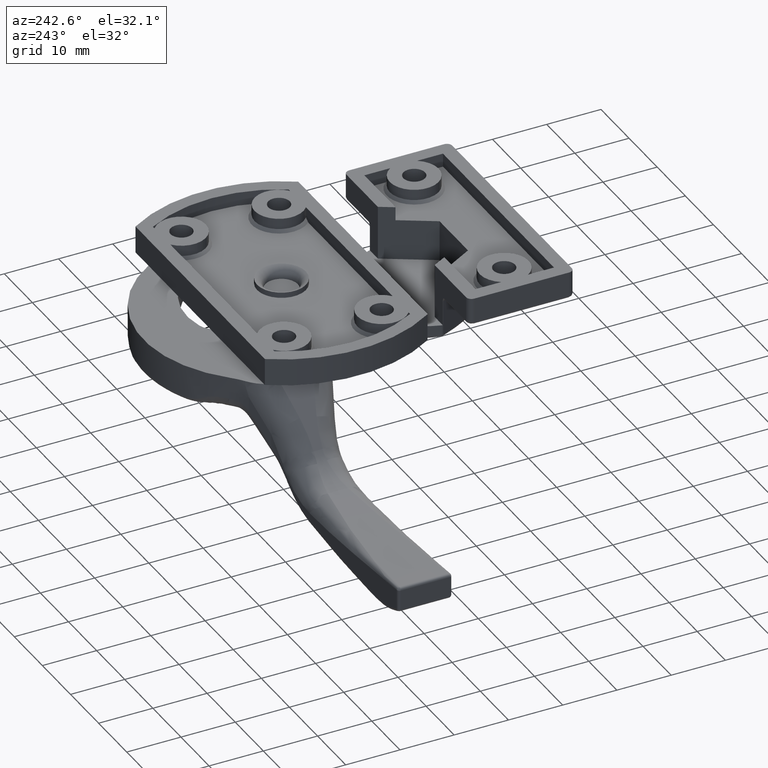
[diagram: clean part render]
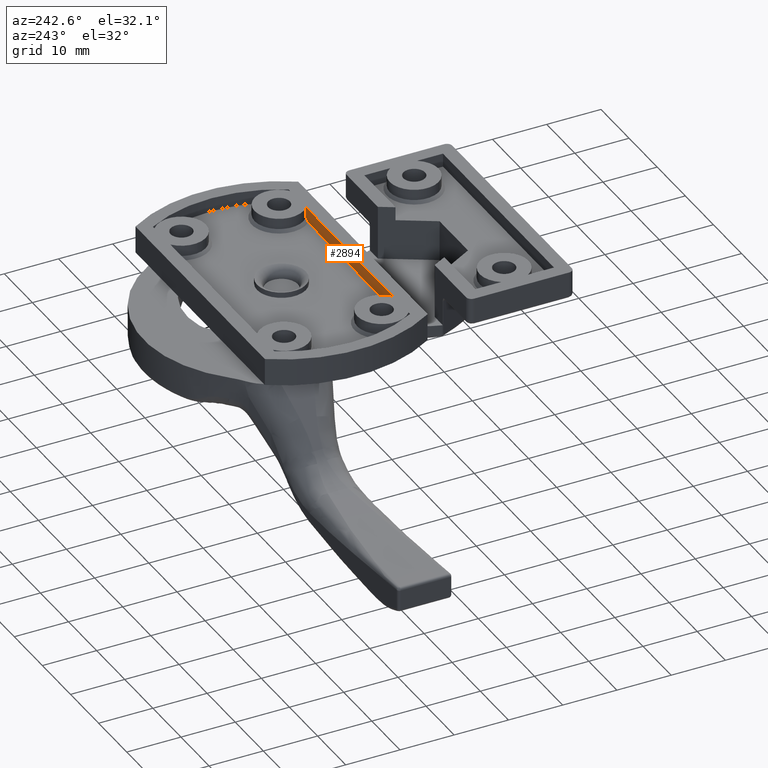
[diagram: same view with one face highlighted and labeled with its STEP entity id]
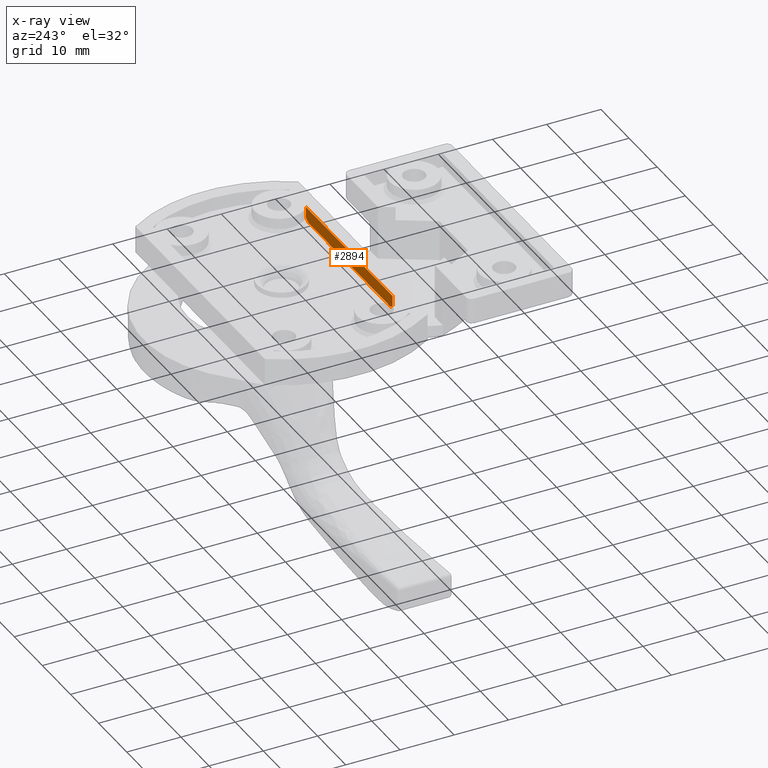
[diagram: x-ray of the same camera — body ghosted, the highlighted face saturated]
A machine part, auxiliary view. The second image highlights one B-rep face of the part: STEP entity #2894.
The next image is the same camera in x-ray: the body ghosted, the highlighted face saturated — about 0% of this face is hidden behind the body in this view.
In plain terms, the highlighted planar face has unit normal (-0, -1, -0).
Its self-contained STEP definition (entity closure, byte-faithful):
#35=(
BOUNDED_CURVE()
B_SPLINE_CURVE(2,(#6313,#6314,#6315),.UNSPECIFIED.,.F.,.F.)
B_SPLINE_CURVE_WITH_KNOTS((3,3),(0.,0.095607804150646),.UNSPECIFIED.)
CURVE()
GEOMETRIC_REPRESENTATION_ITEM()
RATIONAL_B_SPLINE_CURVE((1.,1.00346616190927,1.))
REPRESENTATION_ITEM('')
);
#39=(
BOUNDED_CURVE()
B_SPLINE_CURVE(2,(#6355,#6356,#6357),.UNSPECIFIED.,.F.,.F.)
B_SPLINE_CURVE_WITH_KNOTS((3,3),(0.,0.095607804150646),.UNSPECIFIED.)
CURVE()
GEOMETRIC_REPRESENTATION_ITEM()
RATIONAL_B_SPLINE_CURVE((1.,1.00346616190863,1.))
REPRESENTATION_ITEM('')
);
#113=LINE('',#6261,#250);
#116=LINE('',#6275,#253);
#126=LINE('',#6370,#263);
#129=LINE('',#6379,#266);
#250=VECTOR('',#3423,1.96446609406726);
#253=VECTOR('',#3436,1.96446609406726);
#263=VECTOR('',#3478,29.2593918162082);
#266=VECTOR('',#3491,30.8431457505076);
#370=PLANE('',#3081);
#747=FACE_OUTER_BOUND('',#944,.T.);
#944=EDGE_LOOP('',(#2329,#2330,#2331,#2332,#2333,#2334));
#1298=VERTEX_POINT('',#6258);
#1299=VERTEX_POINT('',#6260);
#1304=VERTEX_POINT('',#6273);
#1305=VERTEX_POINT('',#6274);
#1313=VERTEX_POINT('',#6312);
#1321=VERTEX_POINT('',#6354);
#1645=EDGE_CURVE('',#1299,#1298,#113,.T.);
#1651=EDGE_CURVE('',#1304,#1305,#116,.T.);
#1661=EDGE_CURVE('',#1313,#1299,#35,.T.);
#1676=EDGE_CURVE('',#1305,#1321,#39,.T.);
#1680=EDGE_CURVE('',#1313,#1321,#126,.T.);
#1685=EDGE_CURVE('',#1304,#1298,#129,.T.);
#2329=ORIENTED_EDGE('',*,*,#1645,.T.);
#2330=ORIENTED_EDGE('',*,*,#1685,.F.);
#2331=ORIENTED_EDGE('',*,*,#1651,.T.);
#2332=ORIENTED_EDGE('',*,*,#1676,.T.);
#2333=ORIENTED_EDGE('',*,*,#1680,.F.);
#2334=ORIENTED_EDGE('',*,*,#1661,.T.);
#2894=ADVANCED_FACE('',(#747),#370,.F.);
#3081=AXIS2_PLACEMENT_3D('',#6378,#3489,#3490);
#3423=DIRECTION('',(0.,0.,-1.));
#3436=DIRECTION('',(0.,0.,1.));
#3478=DIRECTION('',(0.,-1.,0.));
#3489=DIRECTION('center_axis',(1.,0.,0.));
#3490=DIRECTION('ref_axis',(0.,0.,-1.));
#3491=DIRECTION('',(0.,1.,0.));
#6258=CARTESIAN_POINT('',(12.5,15.4215728752538,0.));
#6260=CARTESIAN_POINT('',(12.5,15.4215728752538,1.96446609406726));
#6261=CARTESIAN_POINT('',(12.5,15.4215728752538,-57.9364759102383));
#6273=CARTESIAN_POINT('',(12.5,-15.4215728752538,0.));
#6274=CARTESIAN_POINT('',(12.5,-15.4215728752538,1.96446609406726));
#6275=CARTESIAN_POINT('',(12.5,-15.4215728752538,-57.9364759102383));
#6312=CARTESIAN_POINT('',(12.5,14.6296959081041,2.5));
#6313=CARTESIAN_POINT('Ctrl Pts',(12.5,14.6296959081041,2.5));
#6314=CARTESIAN_POINT('Ctrl Pts',(12.5,15.0478710576811,2.1993523957094));
#6315=CARTESIAN_POINT('Ctrl Pts',(12.5,15.4215728752538,1.96446609406726));
#6354=CARTESIAN_POINT('',(12.5,-14.6296959081041,2.5));
#6355=CARTESIAN_POINT('Ctrl Pts',(12.5,-15.4215728752538,1.96446609406726));
#6356=CARTESIAN_POINT('Ctrl Pts',(12.5,-15.0478710576811,2.19935239570942));
#6357=CARTESIAN_POINT('Ctrl Pts',(12.5,-14.6296959081041,2.5));
#6370=CARTESIAN_POINT('',(12.5,23.6905067060614,2.5));
#6378=CARTESIAN_POINT('Origin',(12.5,23.,0.));
#6379=CARTESIAN_POINT('',(12.5,23.6905067060614,0.));